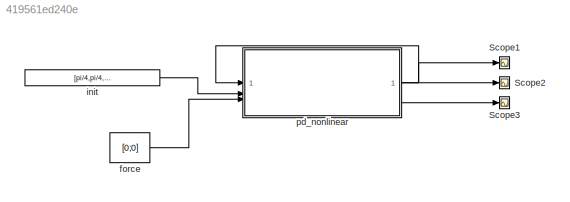
MODEL slx_419561ed240e
KIND model
CONFIG AbsTol = auto
CONFIG EnableMultiTasking = off
CONFIG FixedStep = auto
CONFIG MaxStep = auto
CONFIG MinStep = auto
CONFIG RelTol = 1e-3
CONFIG SampleTimeConstraint = Unconstrained
CONFIG SolverName = VariableStepAuto
CONFIG StartTime = 0.0
CONFIG StopTime = 10
BLOCK [Scope] Scope1
  Floating = off
  NumInputPorts = 1
  ScopeSpecificationString = Simulink.scopes.TimeScopeBlockCfg('CurrentConfiguration', extmgr.ConfigurationSet(extmgr.Configuration('Core','General UI',true),extmgr.Configuration('Core','Source UI',true),extmgr.Configuration('Sources','WiredSimulink',true,'DataLoggingVariableName','ScopeData3'),extmgr.Configuration('Visuals','Time Domain',true,'SerializedDisplays',{struct('MinYLimReal','-14.11853','MaxYLimReal','13.8958','YLa...<+1422ch>
BLOCK [Scope] Scope2
  Floating = off
  NumInputPorts = 1
  ScopeSpecificationString = Simulink.scopes.TimeScopeBlockCfg('CurrentConfiguration', extmgr.ConfigurationSet(extmgr.Configuration('Core','General UI',true),extmgr.Configuration('Core','Source UI',true),extmgr.Configuration('Sources','WiredSimulink',true),extmgr.Configuration('Visuals','Time Domain',true,'SerializedDisplays',{struct('MinYLimReal','-14.11853','MaxYLimReal','13.8958','YLabelReal','','MinYLimMag','0.00000','Max...<+1383ch>
BLOCK [Scope] Scope3
  Floating = off
  NumInputPorts = 1
  ScopeSpecificationString = Simulink.scopes.TimeScopeBlockCfg('CurrentConfiguration', extmgr.ConfigurationSet(extmgr.Configuration('Core','General UI',true),extmgr.Configuration('Core','Source UI',true),extmgr.Configuration('Sources','WiredSimulink',true,'DataLoggingVariableName','ScopeData1'),extmgr.Configuration('Visuals','Time Domain',true,'SerializedDisplays',{struct('MinYLimReal','-1.41252','MaxYLimReal','1.37593','YLab...<+1458ch>
BLOCK [Constant] force
  Value = [0;0]
BLOCK [Constant] init
  Value = [pi/4,pi/4,0,0]
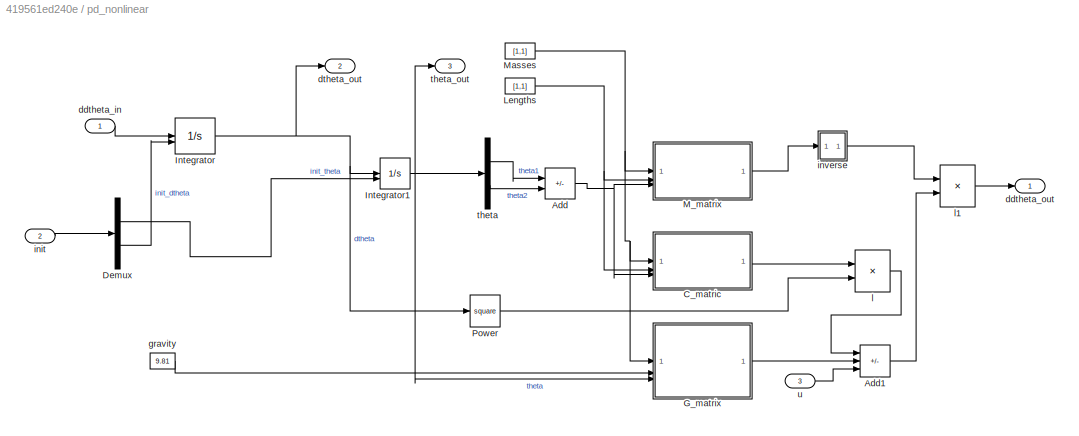
BLOCK [SubSystem] pd_nonlinear
BLOCK [Sum] pd_nonlinear/Add
  IconShape = rectangular
  Inputs = +-
BLOCK [Sum] pd_nonlinear/Add1
  IconShape = rectangular
  Inputs = --+
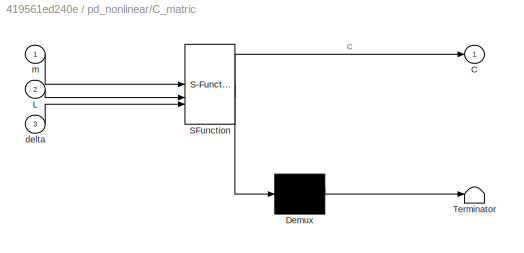
BLOCK [SubSystem] pd_nonlinear/C_matric
  ErrorFcn = Stateflow.Translate.translate
  LibrarySourceBlock = simulink/User-Defined\nFunctions/MATLAB Function
  PermitHierarchicalResolution = ExplicitOnly
  SFBlockType = MATLAB Function
  TreatAsAtomicUnit = on
BLOCK [Demux] pd_nonlinear/C_matric/ Demux 
  Outputs = 1
BLOCK [S-Function] pd_nonlinear/C_matric/ SFunction 
  EnableBusSupport = on
  FunctionName = sf_sfun
  PortCounts = [3 2]
  SFcnIsStateOwnerBlock = off
  SFunctionDeploymentMode = off
  Tag = Stateflow S-Function 5
BLOCK [Terminator] pd_nonlinear/C_matric/ Terminator 
BLOCK [Outport] pd_nonlinear/C_matric/C
BLOCK [Inport] pd_nonlinear/C_matric/L
  Port = 2
BLOCK [Inport] pd_nonlinear/C_matric/delta
  Port = 3
BLOCK [Inport] pd_nonlinear/C_matric/m
BLOCK [Demux] pd_nonlinear/Demux
  Outputs = [2 2]
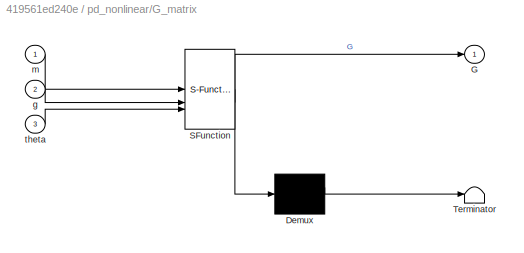
BLOCK [SubSystem] pd_nonlinear/G_matrix
  ErrorFcn = Stateflow.Translate.translate
  LibrarySourceBlock = simulink/User-Defined\nFunctions/MATLAB Function
  PermitHierarchicalResolution = ExplicitOnly
  SFBlockType = MATLAB Function
  TreatAsAtomicUnit = on
BLOCK [Demux] pd_nonlinear/G_matrix/ Demux 
  Outputs = 1
BLOCK [S-Function] pd_nonlinear/G_matrix/ SFunction 
  EnableBusSupport = on
  FunctionName = sf_sfun
  PortCounts = [3 2]
  SFcnIsStateOwnerBlock = off
  SFunctionDeploymentMode = off
  Tag = Stateflow S-Function 6
BLOCK [Terminator] pd_nonlinear/G_matrix/ Terminator 
BLOCK [Outport] pd_nonlinear/G_matrix/G
BLOCK [Inport] pd_nonlinear/G_matrix/g
  Port = 2
BLOCK [Inport] pd_nonlinear/G_matrix/m
BLOCK [Inport] pd_nonlinear/G_matrix/theta
  Port = 3
BLOCK [Integrator] pd_nonlinear/Integrator
  InitialConditionSource = external
BLOCK [Integrator] pd_nonlinear/Integrator1
  InitialConditionSource = external
BLOCK [Constant] pd_nonlinear/Lengths
  Value = [1,1]
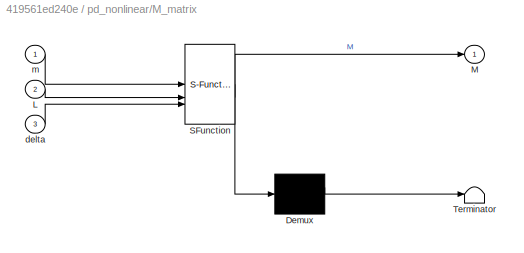
BLOCK [SubSystem] pd_nonlinear/M_matrix
  ErrorFcn = Stateflow.Translate.translate
  LibrarySourceBlock = simulink/User-Defined\nFunctions/MATLAB Function
  PermitHierarchicalResolution = ExplicitOnly
  SFBlockType = MATLAB Function
  TreatAsAtomicUnit = on
BLOCK [Demux] pd_nonlinear/M_matrix/ Demux 
  Outputs = 1
BLOCK [S-Function] pd_nonlinear/M_matrix/ SFunction 
  EnableBusSupport = on
  FunctionName = sf_sfun
  PortCounts = [3 2]
  SFcnIsStateOwnerBlock = off
  SFunctionDeploymentMode = off
  Tag = Stateflow S-Function 7
BLOCK [Terminator] pd_nonlinear/M_matrix/ Terminator 
BLOCK [Inport] pd_nonlinear/M_matrix/L
  Port = 2
BLOCK [Outport] pd_nonlinear/M_matrix/M
BLOCK [Inport] pd_nonlinear/M_matrix/delta
  Port = 3
BLOCK [Inport] pd_nonlinear/M_matrix/m
BLOCK [Constant] pd_nonlinear/Masses
  Value = [1,1]
BLOCK [Math] pd_nonlinear/Power
  Operator = square
BLOCK [Inport] pd_nonlinear/ddtheta_in
  PortDimensions = 2
BLOCK [Outport] pd_nonlinear/ddtheta_out
BLOCK [Outport] pd_nonlinear/dtheta_out
  Port = 2
BLOCK [Constant] pd_nonlinear/gravity
  Value = 9.81
BLOCK [Inport] pd_nonlinear/init
  Port = 2
  PortDimensions = 4
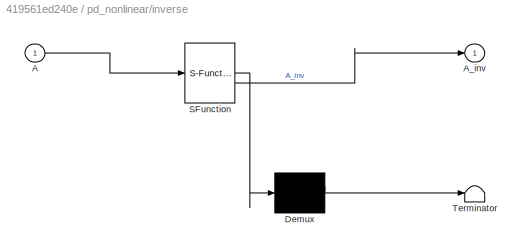
BLOCK [SubSystem] pd_nonlinear/inverse
  ErrorFcn = Stateflow.Translate.translate
  LibrarySourceBlock = simulink/User-Defined\nFunctions/MATLAB Function
  PermitHierarchicalResolution = ExplicitOnly
  SFBlockType = MATLAB Function
  TreatAsAtomicUnit = on
BLOCK [Demux] pd_nonlinear/inverse/ Demux 
  Outputs = 1
BLOCK [S-Function] pd_nonlinear/inverse/ SFunction 
  EnableBusSupport = on
  FunctionName = sf_sfun
  PortCounts = [1 2]
  SFcnIsStateOwnerBlock = off
  SFunctionDeploymentMode = off
  Tag = Stateflow S-Function 8
BLOCK [Terminator] pd_nonlinear/inverse/ Terminator 
BLOCK [Inport] pd_nonlinear/inverse/A
BLOCK [Outport] pd_nonlinear/inverse/A_inv
BLOCK [Product] pd_nonlinear/l
  Multiplication = Matrix(*)
BLOCK [Product] pd_nonlinear/l1
  Multiplication = Matrix(*)
BLOCK [Demux] pd_nonlinear/theta
  Outputs = 2
BLOCK [Outport] pd_nonlinear/theta_out
  Port = 3
BLOCK [Inport] pd_nonlinear/u
  Port = 3
  PortDimensions = 2
LINE force:1 -> pd_nonlinear:3
LINE init:1 -> pd_nonlinear:2
LINE pd_nonlinear/Add1:1 -> pd_nonlinear/l1:2
NET pd_nonlinear/Add:1 -> pd_nonlinear/C_matric:3, pd_nonlinear/M_matrix:3
LINE pd_nonlinear/C_matric:1 -> pd_nonlinear/l:1
LINE pd_nonlinear/Demux:1 -> pd_nonlinear/Integrator1:2
LINE pd_nonlinear/Demux:2 -> pd_nonlinear/Integrator:2
LINE pd_nonlinear/G_matrix:1 -> pd_nonlinear/Add1:2
NET pd_nonlinear/Integrator1:1 -> pd_nonlinear/G_matrix:3, pd_nonlinear/theta:1, pd_nonlinear/theta_out:1
NET pd_nonlinear/Integrator:1 -> pd_nonlinear/Integrator1:1, pd_nonlinear/Power:1, pd_nonlinear/dtheta_out:1
NET pd_nonlinear/Lengths:1 -> pd_nonlinear/C_matric:2, pd_nonlinear/M_matrix:2
LINE pd_nonlinear/M_matrix:1 -> pd_nonlinear/inverse:1
NET pd_nonlinear/Masses:1 -> pd_nonlinear/C_matric:1, pd_nonlinear/G_matrix:1, pd_nonlinear/M_matrix:1
LINE pd_nonlinear/Power:1 -> pd_nonlinear/l:2
LINE pd_nonlinear/ddtheta_in:1 -> pd_nonlinear/Integrator:1
LINE pd_nonlinear/gravity:1 -> pd_nonlinear/G_matrix:2
LINE pd_nonlinear/init:1 -> pd_nonlinear/Demux:1
LINE pd_nonlinear/inverse:1 -> pd_nonlinear/l1:1
LINE pd_nonlinear/l1:1 -> pd_nonlinear/ddtheta_out:1
LINE pd_nonlinear/l:1 -> pd_nonlinear/Add1:1
LINE pd_nonlinear/theta:1 -> pd_nonlinear/Add:1
LINE pd_nonlinear/theta:2 -> pd_nonlinear/Add:2
LINE pd_nonlinear/u:1 -> pd_nonlinear/Add1:3
NET pd_nonlinear:1 -> Scope1:1, pd_nonlinear:1
LINE pd_nonlinear:2 -> Scope2:1
LINE pd_nonlinear:3 -> Scope3:1
note: NET lines group one-source signal fan-out (src -> all destinations, sorted); 1:1 wires keep LINE
CHART pd_nonlinear/C_matric states=1 transitions=1
  STATE_LABEL 'eML_blk_kernel()'
  STATE_LABEL 'SCRIPT:\nfunction C = C_matrix(m,L,delta)\nm2 = m(2);\nm1 = m(1);\nl1 = L(1);\nl2 = L(2);\n\nC = [0, m2*l2*sin(delta); l1*sin(delta)  , 0];  % Coupling matrix\nend\n'
CHART pd_nonlinear/G_matrix states=1 transitions=1
  STATE_LABEL 'eML_blk_kernel()'
  STATE_LABEL 'SCRIPT:\nfunction G = G_matrix(m,g,theta)\nm2 = m(2);\nm1 = m(1);\ng = g;\ntheta_1 = theta(1);\ntheta_2 = theta(2);\nG = [(m1+m2)*g*sin(theta_1); g*sin(theta_2)];                 % Gravitational matrix\nend\n'
CHART pd_nonlinear/M_matrix states=1 transitions=1
  STATE_LABEL 'eML_blk_kernel()'
  STATE_LABEL 'SCRIPT:\nfunction M  = M_matrix(m,L,delta)\nm2 = m(2);\nm1 = m(1);\nl1 = L(1);\nl2 = L(2);\nM = [(m1+m2)*l1  , m2*l2*cos(delta); l1*cos(delta)  , l2]; % Mass matrix\nend\n'
CHART pd_nonlinear/inverse states=1 transitions=1
  STATE_LABEL 'eML_blk_kernel()'
  STATE_LABEL 'SCRIPT:\nfunction A_inv = fcn(A)\n    A_inv = inv(A);\nend'
CHART  states=0 transitions=0
CHART  states=0 transitions=0
CHART  states=0 transitions=0
CHART  states=0 transitions=0
